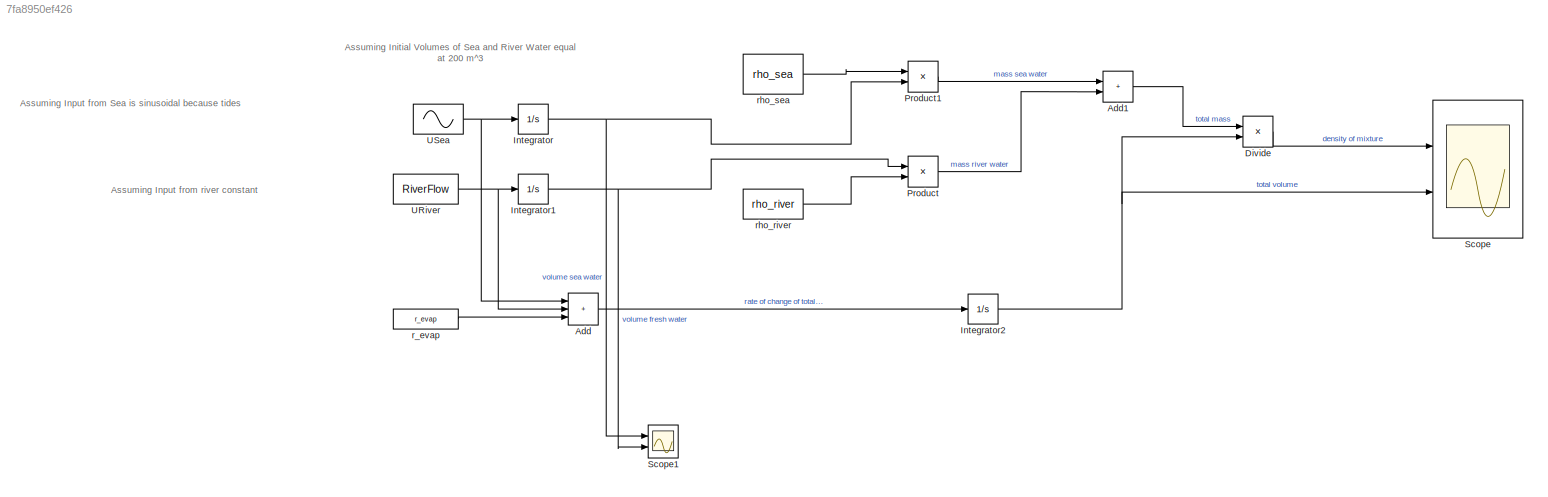
MODEL slx_7fa8950ef426
KIND model
CONFIG AbsTol = auto
CONFIG EnableMultiTasking = off
CONFIG FixedStep = auto
CONFIG MaxStep = auto
CONFIG MinStep = auto
CONFIG RelTol = 1e-3
CONFIG SampleTimeConstraint = Unconstrained
CONFIG SolverName = VariableStepAuto
CONFIG StartTime = 0.0
CONFIG StopTime = 100
BLOCK [Sum] Add
  IconShape = rectangular
  Inputs = +++
  Ports = [3, 1]
BLOCK [Sum] Add1
  IconShape = rectangular
  Ports = [2, 1]
BLOCK [Product] Divide
  Inputs = */
  Ports = [2, 1]
BLOCK [Integrator] Integrator
  InitialCondition = initial_sea_volume
  Ports = [1, 1]
BLOCK [Integrator] Integrator1
  InitialCondition = initial_river_volume
  Ports = [1, 1]
BLOCK [Integrator] Integrator2
  Ports = [1, 1]
BLOCK [Product] Product
  Ports = [2, 1]
BLOCK [Product] Product1
  Ports = [2, 1]
BLOCK [Scope] Scope
  Floating = off
  NumInputPorts = 2
  Ports = [2]
  ScopeSpecificationString = Simulink.scopes.TimeScopeBlockCfg('CurrentConfiguration', extmgr.ConfigurationSet(extmgr.Configuration('Core','General UI',true),extmgr.Configuration('Core','Source UI',true),extmgr.Configuration('Sources','WiredSimulink',true),extmgr.Configuration('Visuals','Time Domain',true,'SerializedDisplays',{struct('MinYLimReal','-27936.59824','MaxYLimReal','75091.68363','YLabelReal','','MinYLimMag','   0.0...<+1640ch>
BLOCK [Scope] Scope1
  Floating = off
  NumInputPorts = 2
  Ports = [2]
  ScopeSpecificationString = Simulink.scopes.TimeScopeBlockCfg('CurrentConfiguration', extmgr.ConfigurationSet(extmgr.Configuration('Core','General UI',true),extmgr.Configuration('Core','Source UI',true),extmgr.Configuration('Sources','WiredSimulink',true,'DataLoggingVariableName','ScopeData1'),extmgr.Configuration('Visuals','Time Domain',true,'SerializedDisplays',{struct('MinYLimReal','-12300.00000','MaxYLimReal','61425.4364...<+1502ch>
BLOCK [Constant] URiver
  Value = RiverFlow
BLOCK [Sin] USea
  Amplitude = SeaFlow
  Frequency = 1/12
  Ports = [0, 1]
  SampleTime = 0
BLOCK [Constant] r_evap
  Value = r_evap
BLOCK [Constant] rho_river
  Value = rho_river
BLOCK [Constant] rho_sea
  Value = rho_sea
ANNOTATION (root): Assuming Initial Volumes of Sea and River Water equal at 200 m^3
ANNOTATION (root): Assuming Input from Sea is sinusoidal because tides
ANNOTATION (root): Assuming Input from river constant
LINE Add1:1 -> Divide:1
LINE Add:1 -> Integrator2:1
LINE Divide:1 -> Scope:1
NET Integrator1:1 -> Product:1, Scope1:2
NET Integrator2:1 -> Divide:2, Scope:2
NET Integrator:1 -> Product1:2, Scope1:1
LINE Product1:1 -> Add1:1
LINE Product:1 -> Add1:2
NET URiver:1 -> Add:2, Integrator1:1
NET USea:1 -> Add:1, Integrator:1
LINE r_evap:1 -> Add:3
LINE rho_river:1 -> Product:2
LINE rho_sea:1 -> Product1:1
note: NET lines group one-source signal fan-out (src -> all destinations, sorted); 1:1 wires keep LINE
